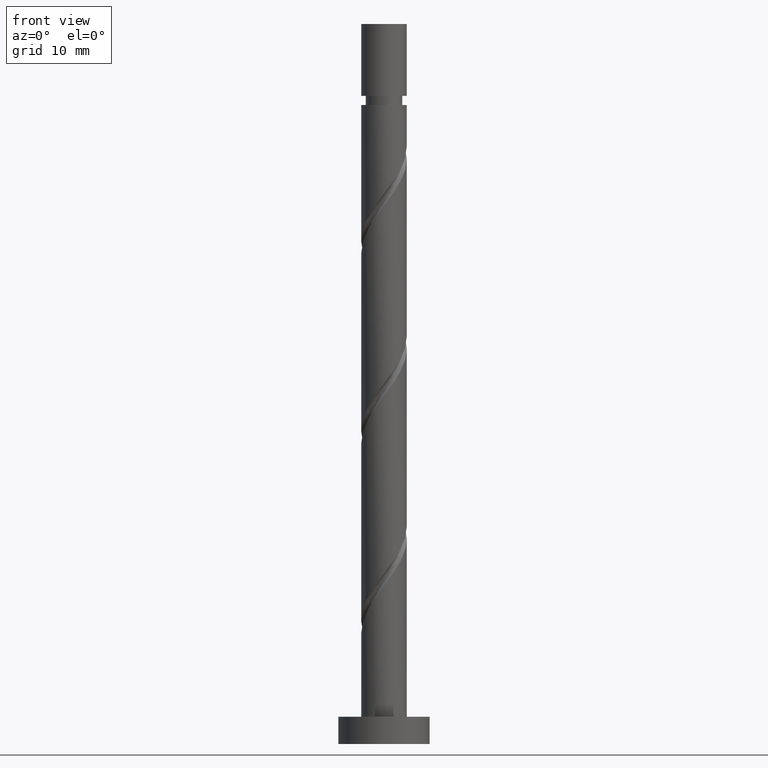
[diagram: clean part render]
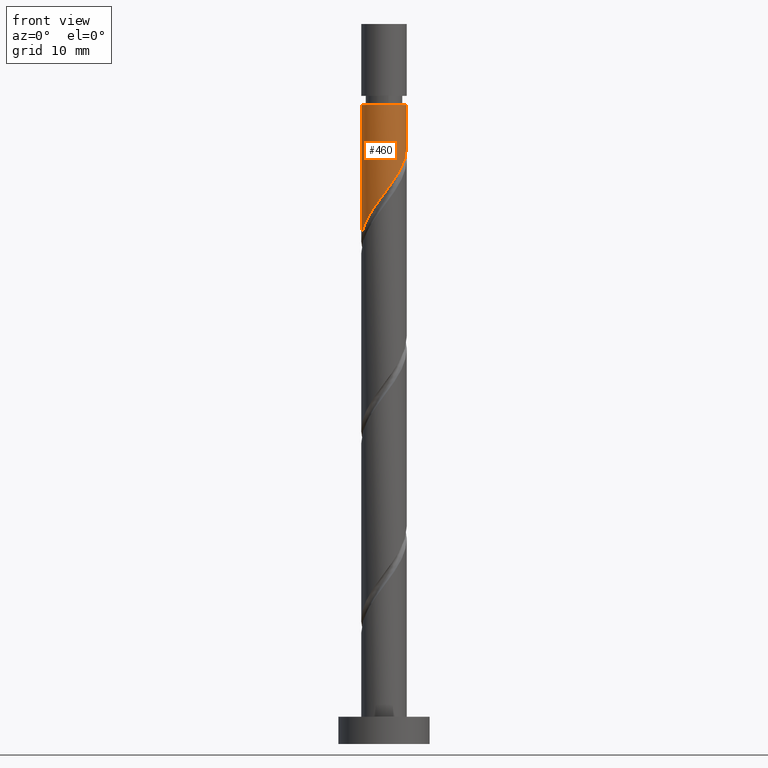
[diagram: same view with one face highlighted and labeled with its STEP entity id]
A machine part, front view. The second image highlights one B-rep face of the part: STEP entity #460.
In plain terms, the highlighted cylindrical surface (edge-blend (fillet) strip) has radius 2.5 mm, axis along (-0, -0, -1).
Its self-contained STEP definition (entity closure, byte-faithful):
#4 = DIRECTION ( 'NONE',  ( -0.000000000000000000, -0.000000000000000000, -1.000000000000000000 ) ) ;
#21 = DIRECTION ( 'NONE',  ( -0.000000000000000000, -0.000000000000000000, -1.000000000000000000 ) ) ;
#32 = CARTESIAN_POINT ( 'NONE',  ( -2.438849692923733326, -0.6773458265033740489, 56.05207832954572211 ) ) ;
#47 = ORIENTED_EDGE ( 'NONE', *, *, #771, .F. ) ;
#111 = EDGE_CURVE ( 'NONE', #1549, #1170, #974, .T. ) ;
#119 = CARTESIAN_POINT ( 'NONE',  ( 2.450000000000000622, -0.4974937185533093165, 64.90624499621239352 ) ) ;
#131 = CARTESIAN_POINT ( 'NONE',  ( 2.500000000000000000, 3.061616997868383141E-16, 79.00000000000000000 ) ) ;
#135 = CARTESIAN_POINT ( 'NONE',  ( -1.230236279064652605, -2.176354451295367198, 58.65624499621237220 ) ) ;
#195 = AXIS2_PLACEMENT_3D ( 'NONE', #1299, #215, #1180 ) ;
#215 = DIRECTION ( 'NONE',  ( -0.000000000000000000, -0.000000000000000000, -1.000000000000000000 ) ) ;
#241 = CARTESIAN_POINT ( 'NONE',  ( 1.397840163920916146, -2.110172521261064027, 62.30207832954571501 ) ) ;
#254 = CARTESIAN_POINT ( 'NONE',  ( 1.689672165344843657, -1.842554741020973719, 62.82291166287905071 ) ) ;
#371 = CARTESIAN_POINT ( 'NONE',  ( 2.499999999999999556, -7.346620363770911307E-16, 65.57104743768265109 ) ) ;
#435 = FACE_OUTER_BOUND ( 'NONE', #940, .T. ) ;
#460 = ADVANCED_FACE ( 'NONE', ( #435 ), #925, .T. ) ;
#522 = VECTOR ( 'NONE', #4, 1000.000000000000000 ) ;
#556 = EDGE_CURVE ( 'NONE', #703, #1063, #607, .T. ) ;
#569 = ORIENTED_EDGE ( 'NONE', *, *, #952, .T. ) ;
#586 = ORIENTED_EDGE ( 'NONE', *, *, #111, .F. ) ;
#599 = CARTESIAN_POINT ( 'NONE',  ( -2.500000000000002665, 0.000000000000000000, 70.11457832954572211 ) ) ;
#607 = LINE ( 'NONE', #1092, #522 ) ;
#635 = CARTESIAN_POINT ( 'NONE',  ( -2.274511107092398010, -1.037592995212145208, 56.57291166287904360 ) ) ;
#703 = VERTEX_POINT ( 'NONE', #599 ) ;
#710 = CARTESIAN_POINT ( 'NONE',  ( 2.176354451295366310, -1.230236279064652827, 63.86457832954571501 ) ) ;
#727 = CARTESIAN_POINT ( 'NONE',  ( 0.2839469933725894402, -2.483822478550886004, 60.73957832954572211 ) ) ;
#740 = CARTESIAN_POINT ( 'NONE',  ( 1.037592995212145208, -2.274511107092398010, 61.78124499621237931 ) ) ;
#763 = CARTESIAN_POINT ( 'NONE',  ( -2.499999999999999556, -0.1424343436160860343, 55.34389186022325902 ) ) ;
#771 = EDGE_CURVE ( 'NONE', #1170, #1063, #1564, .T. ) ;
#791 = DIRECTION ( 'NONE',  ( -1.000000000000000000, 0.000000000000000000, 0.000000000000000000 ) ) ;
#859 = CARTESIAN_POINT ( 'NONE',  ( 1.981504166768771391, -1.574936960780882744, 63.34374499621237220 ) ) ;
#925 = CYLINDRICAL_SURFACE ( 'NONE', #195, 2.500000000000000000 ) ;
#940 = EDGE_LOOP ( 'NONE', ( #586, #569, #1143, #47 ) ) ;
#950 = CARTESIAN_POINT ( 'NONE',  ( 2.371204735821961673, -0.8855355973484230203, 64.38541166287906492 ) ) ;
#952 = EDGE_CURVE ( 'NONE', #1549, #703, #1512, .T. ) ;
#974 = LINE ( 'NONE', #131, #1385 ) ;
#988 = CARTESIAN_POINT ( 'NONE',  ( -1.842554741020973719, -1.689672165344843657, 57.61457832954571501 ) ) ;
#1063 = VERTEX_POINT ( 'NONE', #1172 ) ;
#1092 = CARTESIAN_POINT ( 'NONE',  ( -2.500000000000000000, 0.000000000000000000, 79.00000000000000000 ) ) ;
#1143 = ORIENTED_EDGE ( 'NONE', *, *, #556, .T. ) ;
#1170 = VERTEX_POINT ( 'NONE', #1552 ) ;
#1172 = CARTESIAN_POINT ( 'NONE',  ( -2.500000000000000000, 3.898206723633544695E-16, 55.15438077101598680 ) ) ;
#1180 = DIRECTION ( 'NONE',  ( -1.000000000000000000, 0.000000000000000000, 0.000000000000000000 ) ) ;
#1189 = CARTESIAN_POINT ( 'NONE',  ( -1.574936960780882744, -1.981504166768771391, 58.13541166287905781 ) ) ;
#1204 = CARTESIAN_POINT ( 'NONE',  ( -0.4974937185533092054, -2.450000000000000622, 59.69791166287905781 ) ) ;
#1219 = CARTESIAN_POINT ( 'NONE',  ( -0.1094518397581952240, -2.528795264178037350, 60.21874499621238641 ) ) ;
#1225 = CARTESIAN_POINT ( 'NONE',  ( -2.110172521261063583, -1.397840163920916146, 57.09374499621238641 ) ) ;
#1234 = CARTESIAN_POINT ( 'NONE',  ( -2.483822478550886448, -0.2839469933725895512, 55.53124499621237220 ) ) ;
#1267 = CARTESIAN_POINT ( 'NONE',  ( 2.500000000000002665, 3.061616997868386592E-16, 70.11457832954572211 ) ) ;
#1299 = CARTESIAN_POINT ( 'NONE',  ( 0.000000000000000000, 0.000000000000000000, 79.00000000000000000 ) ) ;
#1368 = CARTESIAN_POINT ( 'NONE',  ( 0.000000000000000000, 0.000000000000000000, 70.11457832954572211 ) ) ;
#1385 = VECTOR ( 'NONE', #1555, 1000.000000000000000 ) ;
#1436 = CARTESIAN_POINT ( 'NONE',  ( -0.8855355973484230203, -2.371204735821961673, 59.17707832954571501 ) ) ;
#1444 = CARTESIAN_POINT ( 'NONE',  ( 2.499999999999999556, -0.2512594538148030798, 65.23674286227480934 ) ) ;
#1452 = CARTESIAN_POINT ( 'NONE',  ( 0.6773458265033740489, -2.438849692923733326, 61.26041166287905071 ) ) ;
#1473 = CARTESIAN_POINT ( 'NONE',  ( -2.500000000000000444, 3.898206723633544695E-16, 55.15438077101598680 ) ) ;
#1512 = CIRCLE ( 'NONE', #1566, 2.500000000000003109 ) ;
#1549 = VERTEX_POINT ( 'NONE', #1267 ) ;
#1552 = CARTESIAN_POINT ( 'NONE',  ( 2.499999999999999556, -7.346620363770911307E-16, 65.57104743768265109 ) ) ;
#1555 = DIRECTION ( 'NONE',  ( -0.000000000000000000, -0.000000000000000000, -1.000000000000000000 ) ) ;
#1564 =( BOUNDED_CURVE ( )  B_SPLINE_CURVE ( 2, ( #371, #1444, #119, #950, #710, #859, #254, #241, #740, #1452, #727, #1219, #1204, #1436, #135, #1189, #988, #1225, #635, #32, #1234, #763, #1473 ),
 .UNSPECIFIED., .F., .T. ) 
 B_SPLINE_CURVE_WITH_KNOTS ( ( 3, 2, 2, 2, 2, 2, 2, 2, 2, 2, 2, 3 ),
 ( 0.3045322023138551937, 0.3125000000000000000, 0.3250000000000000111, 0.3375000000000000222, 0.3499999999999999778, 0.3624999999999999889, 0.3750000000000000000, 0.3875000000000000111, 0.4000000000000000222, 0.4124999999999999778, 0.4249999999999999889, 0.4295322023138550827 ),
 .UNSPECIFIED. ) 
 CURVE ( )  GEOMETRIC_REPRESENTATION_ITEM ( )  RATIONAL_B_SPLINE_CURVE ( ( 0.9039174447099267429, 0.9019565955404562629, 0.9090909090909043977, 0.8978984914501206838, 0.9090909090909043977, 0.8978984914501206838, 0.9090909090909043977, 0.8978984914501206838, 0.9090909090909043977, 0.8978984914501206838, 0.9090909090909043977, 0.8978984914501206838, 0.9090909090909043977, 0.8978984914501206838, 0.9090909090909043977, 0.8978984914501206838, 0.9090909090909043977, 0.8978984914501206838, 0.9090909090909043977, 0.8978984914501206838, 0.9090909090909043977, 0.9050328050005689295, 0.9039174447099268539 ) ) 
 REPRESENTATION_ITEM ( '' )  );
#1566 = AXIS2_PLACEMENT_3D ( 'NONE', #1368, #21, #791 ) ;